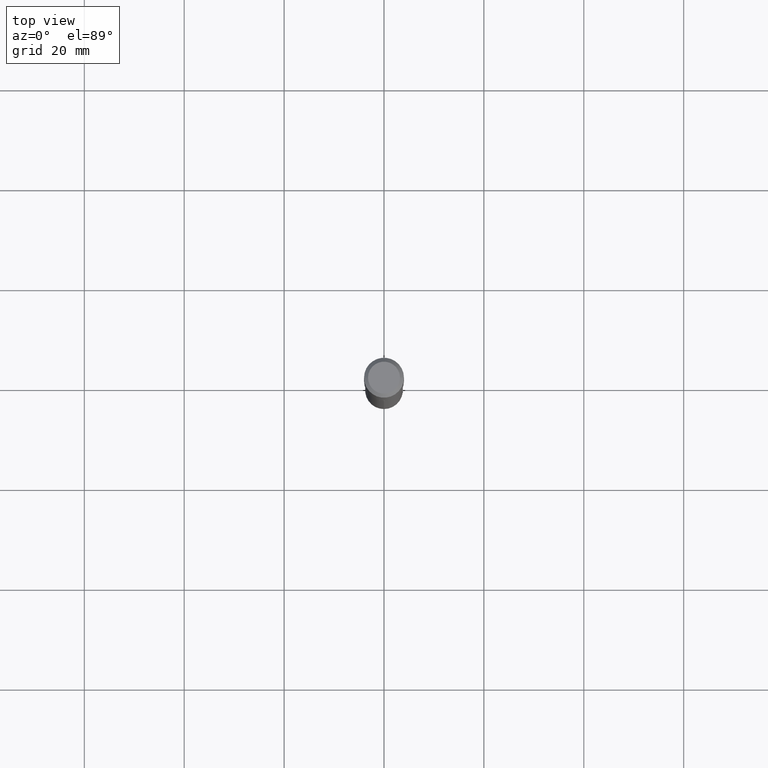
[diagram: clean part render]
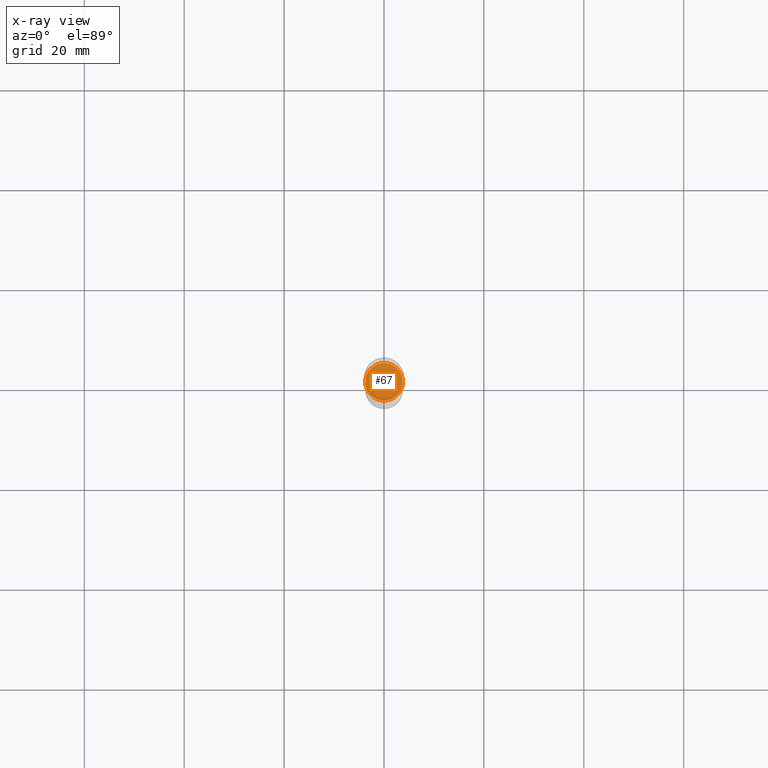
[diagram: x-ray — body ghosted, one internal face saturated and labeled with its STEP entity id]
A machine part, top view, then the same camera in x-ray: the body is ghosted and one INTERNAL B-rep face — a face not visible from any outside direction — is saturated and labeled: STEP entity #67.
In plain terms, the highlighted planar face has unit normal (-0, 0, 1).
Its self-contained STEP definition (entity closure, byte-faithful):
#14 = CARTESIAN_POINT ( 'NONE',  ( 4.747633140327824663E-29, -6.778361871230083058E-15, -1.941400000000000237 ) ) ;
#51 = CARTESIAN_POINT ( 'NONE',  ( 4.747633140327824663E-29, -6.778361871230083058E-15, -1.941400000000000237 ) ) ;
#55 = DIRECTION ( 'NONE',  ( 1.000000000000000000, -6.982962677686265133E-15, 0.000000000000000000 ) ) ;
#67 = ADVANCED_FACE ( 'NONE', ( #194 ), #314, .F. ) ;
#80 = DIRECTION ( 'NONE',  ( -2.438088387897960049E-29, 3.491481338843145188E-15, 1.000000000000000000 ) ) ;
#111 = EDGE_CURVE ( 'NONE', #381, #455, #323, .T. ) ;
#129 = CIRCLE ( 'NONE', #411, 0.1479499999999999982 ) ;
#152 = CARTESIAN_POINT ( 'NONE',  ( 0.1479499999999999982, -7.811491199393766736E-15, -1.941400000000000237 ) ) ;
#165 = CARTESIAN_POINT ( 'NONE',  ( -0.1479499999999999982, -5.724464666498904237E-15, -1.941400000000000237 ) ) ;
#172 = DIRECTION ( 'NONE',  ( -2.445468806185136597E-29, 3.491481338843145583E-15, 1.000000000000000000 ) ) ;
#194 = FACE_OUTER_BOUND ( 'NONE', #283, .T. ) ;
#197 = ORIENTED_EDGE ( 'NONE', *, *, #111, .F. ) ;
#238 = DIRECTION ( 'NONE',  ( -2.445468806185136597E-29, 3.491481338843145583E-15, 1.000000000000000000 ) ) ;
#283 = EDGE_LOOP ( 'NONE', ( #359, #197 ) ) ;
#289 = AXIS2_PLACEMENT_3D ( 'NONE', #14, #172, #55 ) ;
#314 = PLANE ( 'NONE',  #454 ) ;
#322 = CARTESIAN_POINT ( 'NONE',  ( 4.747633140327824663E-29, -6.778361871230083058E-15, -1.941400000000000237 ) ) ;
#323 = CIRCLE ( 'NONE', #289, 0.1479499999999999982 ) ;
#352 = EDGE_CURVE ( 'NONE', #455, #381, #129, .T. ) ;
#359 = ORIENTED_EDGE ( 'NONE', *, *, #352, .F. ) ;
#381 = VERTEX_POINT ( 'NONE', #165 ) ;
#411 = AXIS2_PLACEMENT_3D ( 'NONE', #51, #238, #418 ) ;
#418 = DIRECTION ( 'NONE',  ( 1.000000000000000000, -6.982962677686265133E-15, 0.000000000000000000 ) ) ;
#424 = DIRECTION ( 'NONE',  ( 1.000000000000000000, -6.982962677686265922E-15, 4.876176775795935793E-29 ) ) ;
#454 = AXIS2_PLACEMENT_3D ( 'NONE', #322, #80, #424 ) ;
#455 = VERTEX_POINT ( 'NONE', #152 ) ;